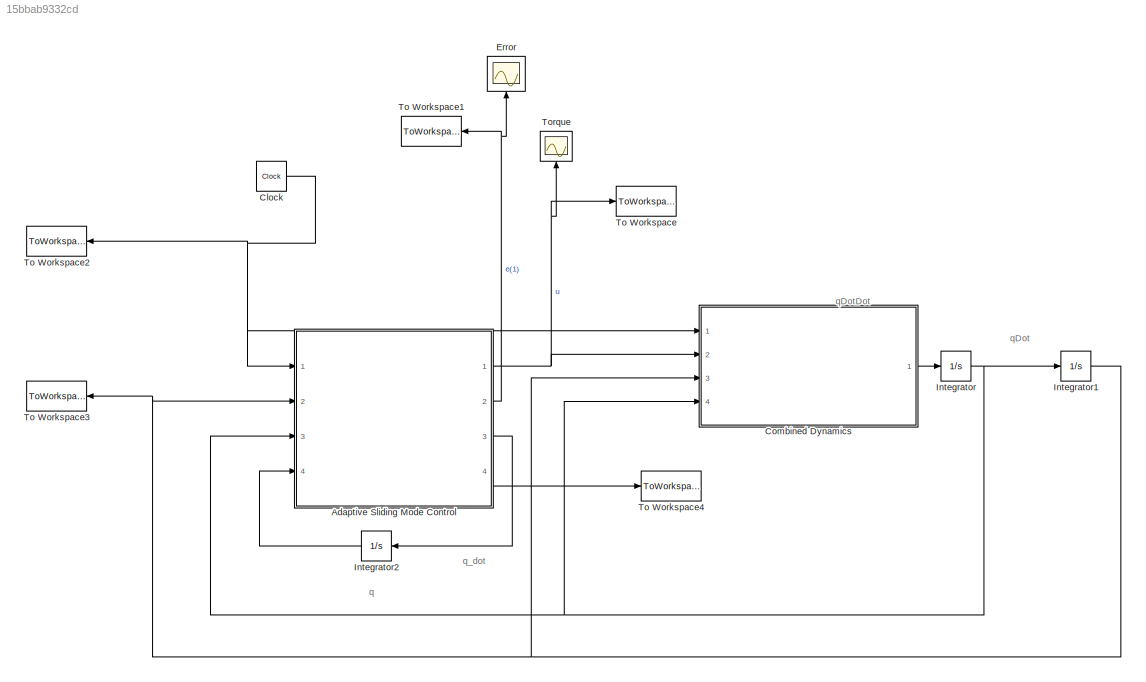
MODEL slx_15bbab9332cd
KIND model
CONFIG AbsTol = auto
CONFIG EnableMultiTasking = on
CONFIG FixedStep = auto
CONFIG MaxStep = auto
CONFIG MinStep = auto
CONFIG RelTol = 1e-3
CONFIG SampleTimeConstraint = Unconstrained
CONFIG Solver = ode45
CONFIG SolverName = ode45
CONFIG StartTime = 0.0
CONFIG StopTime = 20
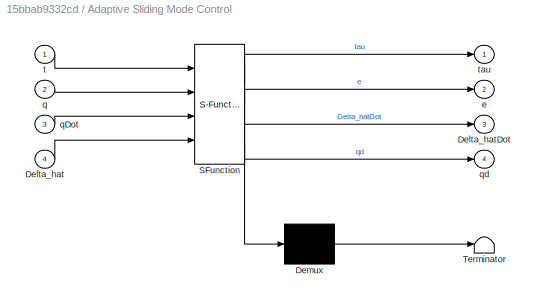
BLOCK [SubSystem] Adaptive Sliding Mode Control 
  ErrorFcn = Stateflow.Translate.translate
  PermitHierarchicalResolution = ExplicitOnly
  Ports = [4, 4]
  RequestExecContextInheritance = off
  SFBlockType = MATLAB Function
  TreatAsAtomicUnit = on
  Variant = off
BLOCK [Demux] Adaptive Sliding Mode Control / Demux 
  Outputs = 1
  Ports = [1, 1]
BLOCK [S-Function] Adaptive Sliding Mode Control / SFunction 
  EnableBusSupport = off
  FunctionName = sf_sfun
  PortCounts = [4 5]
  Ports = [4, 5]
  SFcnIsStateOwnerBlock = off
  SFunctionDeploymentMode = off
  Tag = Stateflow S-Function Adaptive_SMC 3
BLOCK [Terminator] Adaptive Sliding Mode Control / Terminator 
BLOCK [Inport] Adaptive Sliding Mode Control /Delta_hat
  IconDisplay = Port number
  Port = 4
BLOCK [Outport] Adaptive Sliding Mode Control /Delta_hatDot
  IconDisplay = Port number
  Port = 3
BLOCK [Outport] Adaptive Sliding Mode Control /e
  IconDisplay = Port number
  Port = 2
BLOCK [Inport] Adaptive Sliding Mode Control /q
  IconDisplay = Port number
  Port = 2
BLOCK [Inport] Adaptive Sliding Mode Control /qDot
  IconDisplay = Port number
  Port = 3
BLOCK [Outport] Adaptive Sliding Mode Control /qd
  IconDisplay = Port number
  Port = 4
BLOCK [Inport] Adaptive Sliding Mode Control /t
  IconDisplay = Port number
BLOCK [Outport] Adaptive Sliding Mode Control /tau
  IconDisplay = Port number
BLOCK [Clock] Clock
  Decimation = 100
  DisplayTime = on
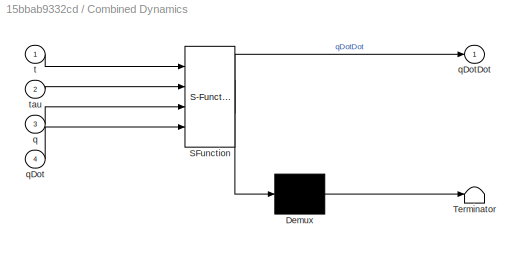
BLOCK [SubSystem] Combined Dynamics 
  ErrorFcn = Stateflow.Translate.translate
  PermitHierarchicalResolution = ExplicitOnly
  Ports = [4, 1]
  RequestExecContextInheritance = off
  SFBlockType = MATLAB Function
  TreatAsAtomicUnit = on
  Variant = off
BLOCK [Demux] Combined Dynamics / Demux 
  Outputs = 1
  Ports = [1, 1]
BLOCK [S-Function] Combined Dynamics / SFunction 
  EnableBusSupport = off
  FunctionName = sf_sfun
  PortCounts = [4 2]
  Ports = [4, 2]
  SFcnIsStateOwnerBlock = off
  SFunctionDeploymentMode = off
  Tag = Stateflow S-Function Adaptive_SMC 1
BLOCK [Terminator] Combined Dynamics / Terminator 
BLOCK [Inport] Combined Dynamics /q
  IconDisplay = Port number
  Port = 3
BLOCK [Inport] Combined Dynamics /qDot
  IconDisplay = Port number
  Port = 4
BLOCK [Outport] Combined Dynamics /qDotDot
  IconDisplay = Port number
BLOCK [Inport] Combined Dynamics /t
  IconDisplay = Port number
BLOCK [Inport] Combined Dynamics /tau
  IconDisplay = Port number
  Port = 2
BLOCK [Scope] Error 
  NumInputPorts = 1
  Ports = [1]
  ScopeSpecificationString = Simulink.scopes.TimeScopeBlockCfg('CurrentConfiguration', extmgr.ConfigurationSet(extmgr.Configuration('Core','General UI',true),extmgr.Configuration('Core','Source UI',true),extmgr.Configuration('Sources','WiredSimulink',true,'DataLoggingLimitDataPoints',true,'DataLoggingSaveFormat','Array','DataLoggingDecimation','1','DataLoggingDecimateData',true),extmgr.Configuration('Visuals','Time Domain',tr...<+1582ch>
BLOCK [Integrator] Integrator
  IgnoreLimit = on
  InitialCondition = [0;0;0;0;0;0;0;pi/2]
  Ports = [1, 1]
BLOCK [Integrator] Integrator1
  InitialCondition = [0;0;0;0;0;0;0;0]
  Ports = [1, 1]
BLOCK [Integrator] Integrator2
  IgnoreLimit = on
  InitialCondition = [0;0;0;0;0;0;0;0]
  Ports = [1, 1]
BLOCK [ToWorkspace] To Workspace
  MaxDataPoints = inf
  Ports = [1]
  SampleTime = -1
  VariableName = torque
BLOCK [ToWorkspace] To Workspace1
  MaxDataPoints = inf
  Ports = [1]
  SampleTime = -1
  VariableName = error
BLOCK [ToWorkspace] To Workspace2
  MaxDataPoints = inf
  Ports = [1]
  SampleTime = -1
  VariableName = time
BLOCK [ToWorkspace] To Workspace3
  MaxDataPoints = inf
  Ports = [1]
  SampleTime = -1
  VariableName = q
BLOCK [ToWorkspace] To Workspace4
  MaxDataPoints = inf
  Ports = [1]
  SampleTime = -1
  VariableName = qd
BLOCK [Scope] Torque 
  NumInputPorts = 1
  Ports = [1]
  ScopeSpecificationString = Simulink.scopes.TimeScopeBlockCfg('CurrentConfiguration', extmgr.ConfigurationSet(extmgr.Configuration('Core','General UI',true),extmgr.Configuration('Core','Source UI',true),extmgr.Configuration('Sources','WiredSimulink',true,'DataLoggingVariableName','ScopeData1','DataLoggingLimitDataPoints',true,'DataLoggingSaveFormat','Array','DataLoggingDecimation','1','DataLoggingDecimateData',true),extmgr.C...<+1565ch>
ANNOTATION (root): q
ANNOTATION (root): qDot
ANNOTATION (root): qDotDot
ANNOTATION (root): q_dot
NET Adaptive Sliding Mode Control :1 -> Combined Dynamics :2, To Workspace:1, Torque :1
NET Adaptive Sliding Mode Control :2 -> Error :1, To Workspace1:1
LINE Adaptive Sliding Mode Control :3 -> Integrator2:1
LINE Adaptive Sliding Mode Control :4 -> To Workspace4:1
NET Clock:1 -> Adaptive Sliding Mode Control :1, Combined Dynamics :1, To Workspace2:1
LINE Combined Dynamics :1 -> Integrator:1
NET Integrator1:1 -> Adaptive Sliding Mode Control :2, Combined Dynamics :3, To Workspace3:1
LINE Integrator2:1 -> Adaptive Sliding Mode Control :4
NET Integrator:1 -> Adaptive Sliding Mode Control :3, Combined Dynamics :4, Integrator1:1
note: NET lines group one-source signal fan-out (src -> all destinations, sorted); 1:1 wires keep LINE
CHART Combined Dynamics 
 states=1 transitions=1
  STATE_LABEL 'eML_blk_kernel()'
  STATE_LABEL 'SCRIPT:\n% Robot manipulator dynamics.\nfunction qDotDot  = Aerial_Manipulator_dynamics(t, tau, q, qDot)\n\n% q1 = q(1); q2 = q(2); % Joint angles\n% q1_dot = q_dot(1); q2_dot = q_dot(2); % Joint angular velocities\n\nx = q(1); \ny = q(2);\nz = q(3);\nphi = q(4);\ntheta = q(5);\npsi = q(6); \nn1 = q(7);\nn2 = q(8);\n\nx_dot = qDot(1);\ny_dot = qDot(2);\nz_dot = qDot(3);\nphi_dot = qDot(4);\ntheta_dot = qDot(5); \npsi_...<+3608ch>'
CHART Adaptive Sliding Mode Control
 states=1 transitions=1
  STATE_LABEL 'eML_blk_kernel()'
  STATE_LABEL "SCRIPT:\n\nfunction [tau, e, Delta_hatDot, qd]= Adaptive_SlidingMC(t,q, qDot, Delta_hat)\n\nqd = [0 0 6 0 0 0 .5 .5]';\nqdDot = [0 0 0 0 0 0 0 0]';\nqdDotDot = [0 0 0 0 0 0 0 0]';\n\nlamda = 2*eye(8,8);\ne = q - qd; \neDot = qDot - qdDot;\ns = eDot - lamda*e;\nqrDot = qdDot-lamda*e;\nqrDotDot = qdDotDot - lamda*eDot;\n\nM_hat = eye(8,8);\nC_hat = eye(8,8);\nG_hat = [0 0 10 0 0 0 0 0]';\nA = eye(8,8);\nK = eye(8,8);\n...<+3608ch>"
